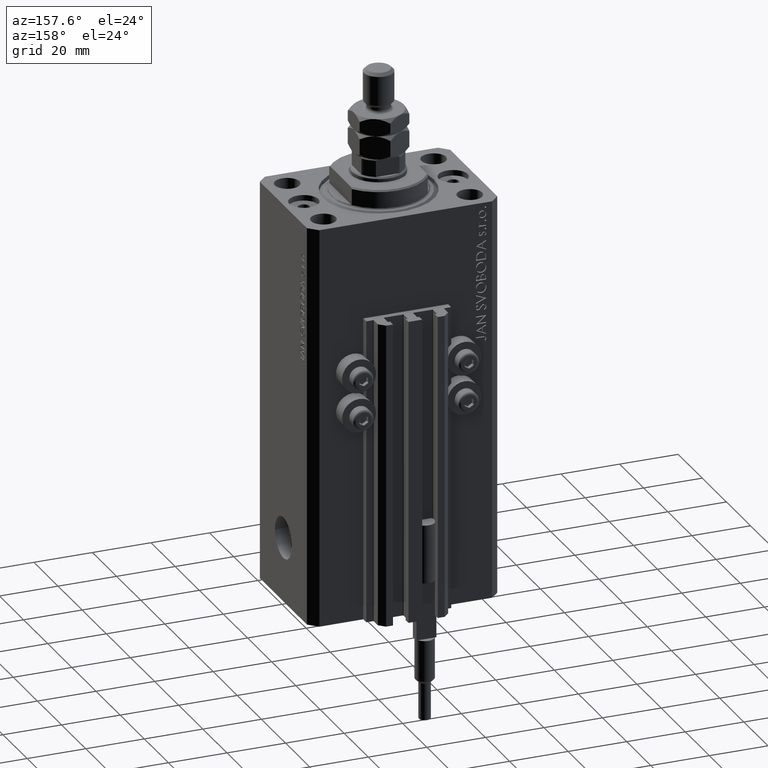
[diagram: clean part render]
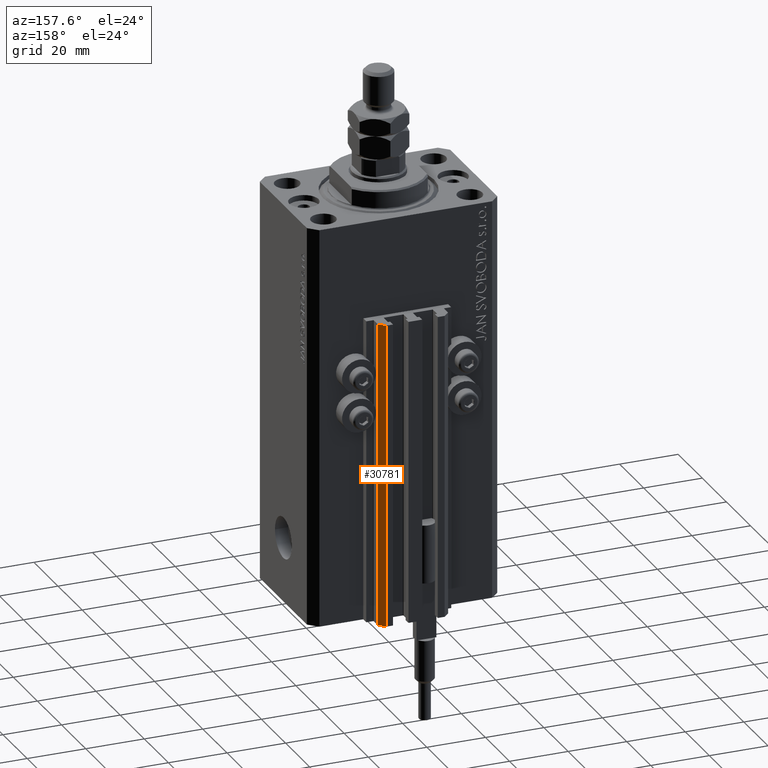
[diagram: same view with one face highlighted and labeled with its STEP entity id]
A machine part, auxiliary view. The second image highlights one B-rep face of the part: STEP entity #30781.
In plain terms, the highlighted planar face has unit normal (0.7071, 0.7071, 0).
Its self-contained STEP definition (entity closure, byte-faithful):
#589 = CARTESIAN_POINT ( 'NONE',  ( 12.00000000000000178, 28.49999999999950973, -137.0000000000000000 ) ) ;
#3498 = CARTESIAN_POINT ( 'NONE',  ( 9.999999999999994671, 30.49999999999949551, -33.00000000000000000 ) ) ;
#3944 = LINE ( 'NONE', #22748, #38454 ) ;
#5239 = DIRECTION ( 'NONE',  ( -0.7071067811865509034, 0.7071067811865441310, 0.000000000000000000 ) ) ;
#9318 = VECTOR ( 'NONE', #42688, 1000.000000000000000 ) ;
#11706 = EDGE_CURVE ( 'NONE', #17184, #32156, #3944, .T. ) ;
#12561 = ORIENTED_EDGE ( 'NONE', *, *, #11706, .T. ) ;
#13578 = CARTESIAN_POINT ( 'NONE',  ( 12.00000000000000178, 28.49999999999950973, -33.00000000000000000 ) ) ;
#14715 = CARTESIAN_POINT ( 'NONE',  ( 12.00000000000000178, 28.49999999999950973, -33.00000000000000000 ) ) ;
#16519 = PLANE ( 'NONE',  #47935 ) ;
#17184 = VERTEX_POINT ( 'NONE', #20289 ) ;
#17670 = VECTOR ( 'NONE', #21859, 1000.000000000000000 ) ;
#18583 = ORIENTED_EDGE ( 'NONE', *, *, #38243, .F. ) ;
#20289 = CARTESIAN_POINT ( 'NONE',  ( 12.00000000000000178, 28.49999999999950973, -137.0000000000000000 ) ) ;
#20582 = CARTESIAN_POINT ( 'NONE',  ( 9.999999999999994671, 30.49999999999949551, -137.0000000000000000 ) ) ;
#21355 = LINE ( 'NONE', #13578, #17670 ) ;
#21859 = DIRECTION ( 'NONE',  ( -0.7071067811865507924, 0.7071067811865441310, 0.000000000000000000 ) ) ;
#22748 = CARTESIAN_POINT ( 'NONE',  ( 12.00000000000000178, 28.49999999999950973, -137.0000000000000000 ) ) ;
#23676 = EDGE_LOOP ( 'NONE', ( #18583, #35091, #12561, #43818 ) ) ;
#23869 = EDGE_CURVE ( 'NONE', #32156, #47456, #32213, .T. ) ;
#24221 = CARTESIAN_POINT ( 'NONE',  ( 9.999999999999994671, 30.49999999999949551, -137.0000000000000000 ) ) ;
#24469 = DIRECTION ( 'NONE',  ( 0.000000000000000000, 0.000000000000000000, 1.000000000000000000 ) ) ;
#25614 = EDGE_CURVE ( 'NONE', #17184, #37726, #30416, .T. ) ;
#29514 = DIRECTION ( 'NONE',  ( -0.7071067811865507924, 0.7071067811865441310, 0.000000000000000000 ) ) ;
#30416 = LINE ( 'NONE', #589, #9318 ) ;
#30781 = ADVANCED_FACE ( 'NONE', ( #42600 ), #16519, .T. ) ;
#31536 = DIRECTION ( 'NONE',  ( 0.7071067811865441310, 0.7071067811865509034, -0.000000000000000000 ) ) ;
#32156 = VERTEX_POINT ( 'NONE', #20582 ) ;
#32213 = LINE ( 'NONE', #24221, #33287 ) ;
#33287 = VECTOR ( 'NONE', #24469, 1000.000000000000000 ) ;
#34815 = CARTESIAN_POINT ( 'NONE',  ( 12.00000000000000178, 28.49999999999950973, -137.0000000000000000 ) ) ;
#35091 = ORIENTED_EDGE ( 'NONE', *, *, #25614, .F. ) ;
#37726 = VERTEX_POINT ( 'NONE', #14715 ) ;
#38243 = EDGE_CURVE ( 'NONE', #37726, #47456, #21355, .T. ) ;
#38454 = VECTOR ( 'NONE', #29514, 1000.000000000000000 ) ;
#42600 = FACE_OUTER_BOUND ( 'NONE', #23676, .T. ) ;
#42688 = DIRECTION ( 'NONE',  ( 0.000000000000000000, 0.000000000000000000, 1.000000000000000000 ) ) ;
#43818 = ORIENTED_EDGE ( 'NONE', *, *, #23869, .T. ) ;
#47456 = VERTEX_POINT ( 'NONE', #3498 ) ;
#47935 = AXIS2_PLACEMENT_3D ( 'NONE', #34815, #31536, #5239 ) ;